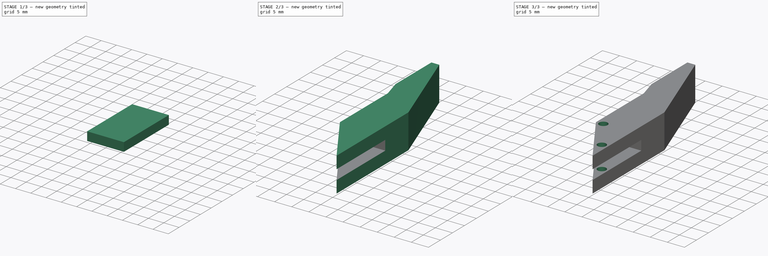
[diagram: build sequence overview — one tinted view per stage of 3, left to right]
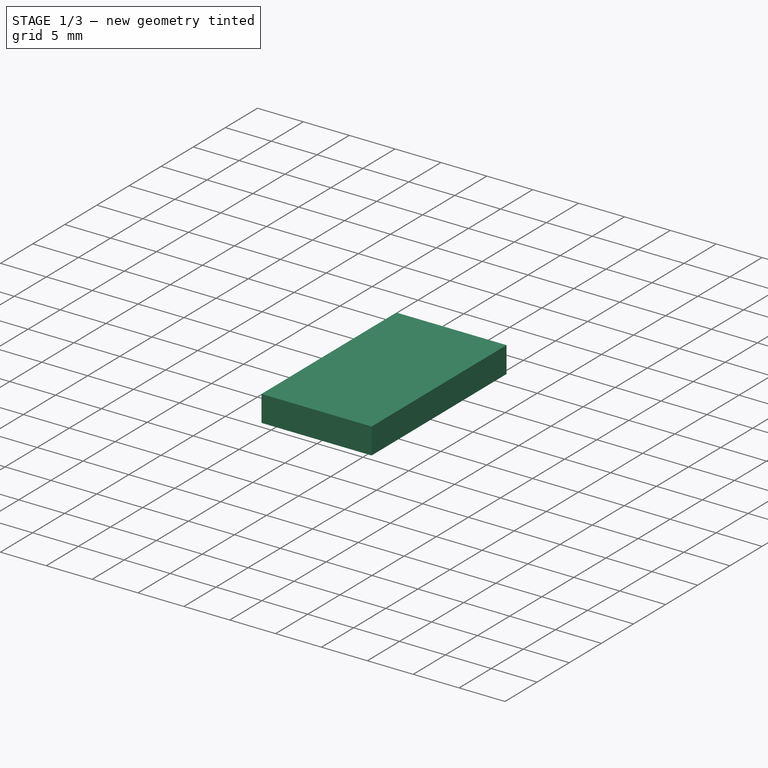
[diagram: stage 1 of 3 — iso view after this stage's code; geometry added in this stage tinted green]
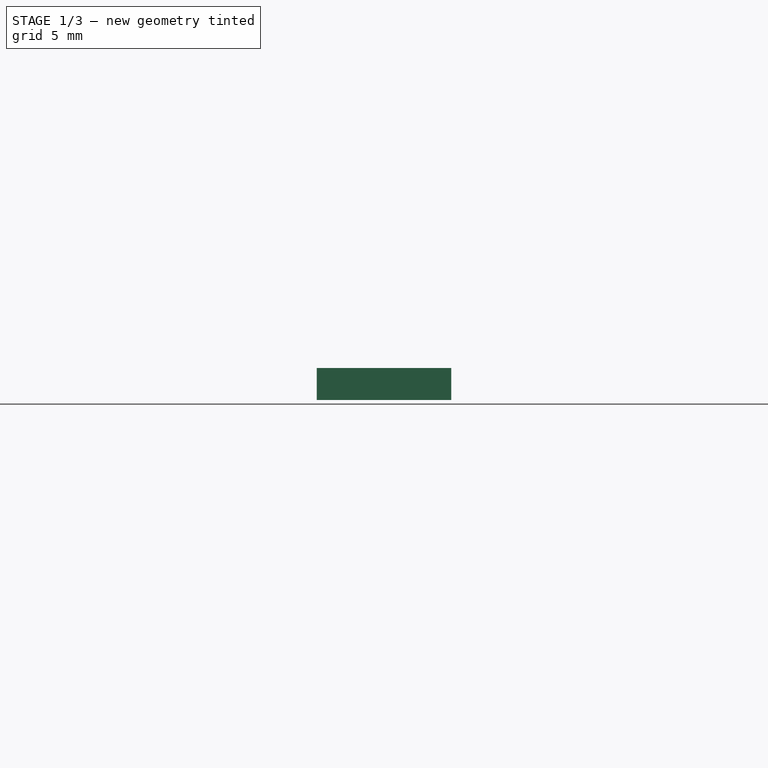
[diagram: stage 1 of 3 — front view after this stage's code; geometry added in this stage tinted green]
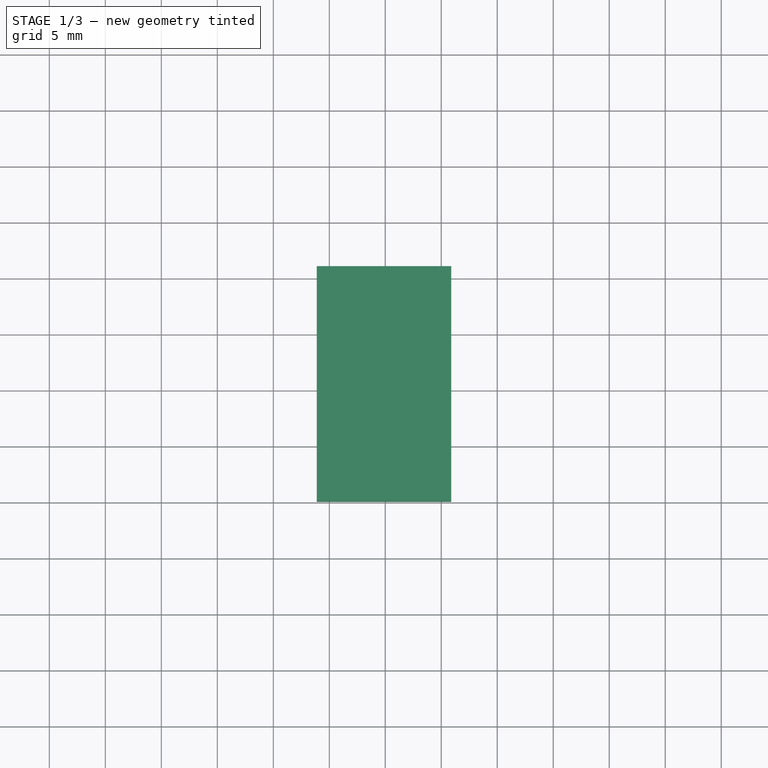
[diagram: stage 1 of 3 — top view after this stage's code; geometry added in this stage tinted green]
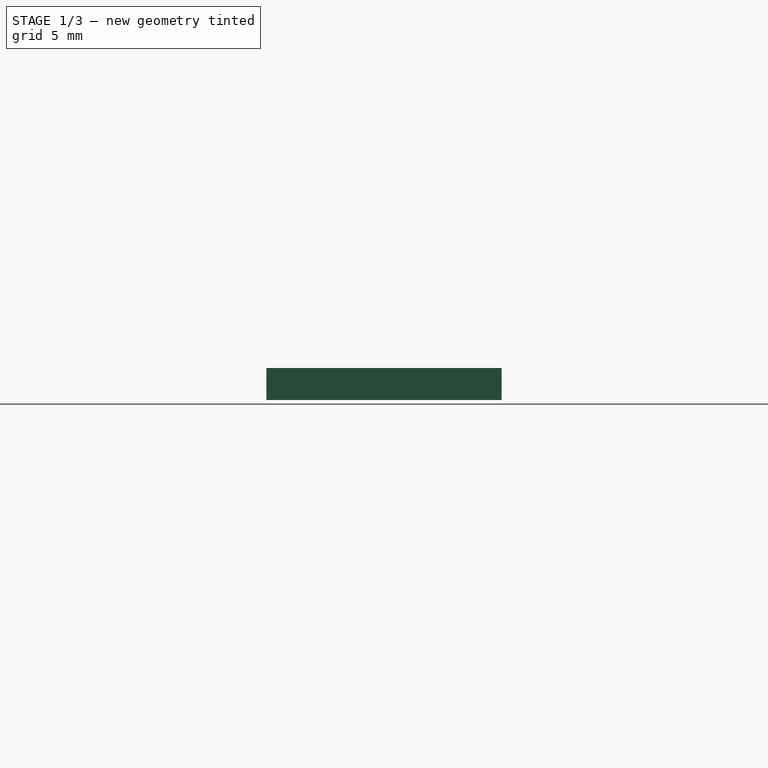
[diagram: stage 1 of 3 — right view after this stage's code; geometry added in this stage tinted green]
FCSTD DOCUMENT  (FreeCAD 0.20R29410 (Git))
Label: Eslabon3
License: All rights reserved
LicenseURL: http://en.wikipedia.org/wiki/All_rights_reserved
objects: Sketcher::SketchObject×3, Part::Extrusion×3, Part::Cut×2
note: 8 computed .brp shape members not serialized (recipe doc carries the construction recipe); baked Part::Feature solids carry a one-line shape summary decoded from their .brp

FEATURE [Sketcher::SketchObject] Sketch  label="Grip1"
  FullyConstrained = false
  sketch-geometry (7):
    g0: LineSegment StartX=30.3549 StartY=31.7763 StartZ=0 EndX=40.5922 EndY=15.7701 EndZ=0
    g1: LineSegment StartX=40.5922 StartY=15.7701 StartZ=0 EndX=40.5922 EndY=45.7701 EndZ=0
    g2: LineSegment StartX=28.8852 StartY=72.0866 StartZ=0 EndX=28.8852 EndY=57.0866 EndZ=0
    g3: LineSegment StartX=28.8852 StartY=57.0866 StartZ=0 EndX=30.3549 EndY=51.7763 EndZ=0
    g4: LineSegment StartX=30.3549 StartY=51.7763 StartZ=0 EndX=30.3549 EndY=31.7763 EndZ=0
    g5: LineSegment StartX=28.8852 StartY=72.0866 StartZ=0 EndX=31.1751 EndY=72.0866 EndZ=0
    g6: LineSegment StartX=31.1751 StartY=72.0866 StartZ=0 EndX=40.5922 EndY=45.7701 EndZ=0
  constraints (16):
    c: Vertical(g1)
    c: Vertical(g2)
    c: Vertical(g4)
    c: Coincident(g4,g3)
    c: Coincident(g3,g2)
    c: Coincident(g1,g0)
    c: Distance(g1) = 30
    c: Distance(g4) = 20
    c: Distance(g2) = 15
    c: Distance(g3) = 5.51
    c: Coincident(g4,g0)
    c: Coincident(g5,g2)
    c: Horizontal(g5)
    c: Coincident(g6,g1)
    c: Coincident(g5,g6)
    c: Distance(g0) = 19
FEATURE [Part::Extrusion] Extrude
  Base = -> Sketch
  Dir = (0,0,1)
  DirMode = 2
  FaceMakerClass = Part::FaceMakerBullseye
  LengthFwd = 10
  LengthRev = 0
  Solid = true
  Symmetric = false
FEATURE [Sketcher::SketchObject] Sketch001  label="Agujero 12x21"
  FullyConstrained = false
  MapMode = 5
  Placement = pos=(28.8852,0,0) rot=(0.57735,-0.57735,-0.57735;2.0944rad)
  Support = -> [Extrude]
  sketch-geometry (4):
    g0: LineSegment StartX=-15.0986 StartY=6.425 StartZ=0 EndX=-36.0986 EndY=6.425 EndZ=0
    g1: LineSegment StartX=-36.0986 StartY=6.425 StartZ=0 EndX=-36.0986 EndY=3.575 EndZ=0
    g2: LineSegment StartX=-36.0986 StartY=3.575 StartZ=0 EndX=-15.0986 EndY=3.575 EndZ=0
    g3: LineSegment StartX=-15.0986 StartY=3.575 StartZ=0 EndX=-15.0986 EndY=6.425 EndZ=0
  constraints (12):
    c: Horizontal(g0)
    c: Coincident(g1,g0)
    c: Vertical(g1)
    c: Horizontal(g2)
    c: Coincident(g3,g2)
    c: Coincident(g3,g0)
    c: Equal(g0,g2)
    c: Equal(g1,g3)
    c: Vertical(g3)
    c: DistanceX(g0,g0) = 21
    c: DistanceY(g3,g3) = 2.85
    c: DistanceY(g-1,g2) = 3.575
FEATURE [Part::Extrusion] Extrude001
  Base = -> Sketch001
  Dir = (-1,0,0)
  DirMode = 2
  FaceMakerClass = Part::FaceMakerBullseye
  LengthFwd = 12
  LengthRev = 0
  Reversed = true
  Solid = true
  Symmetric = false
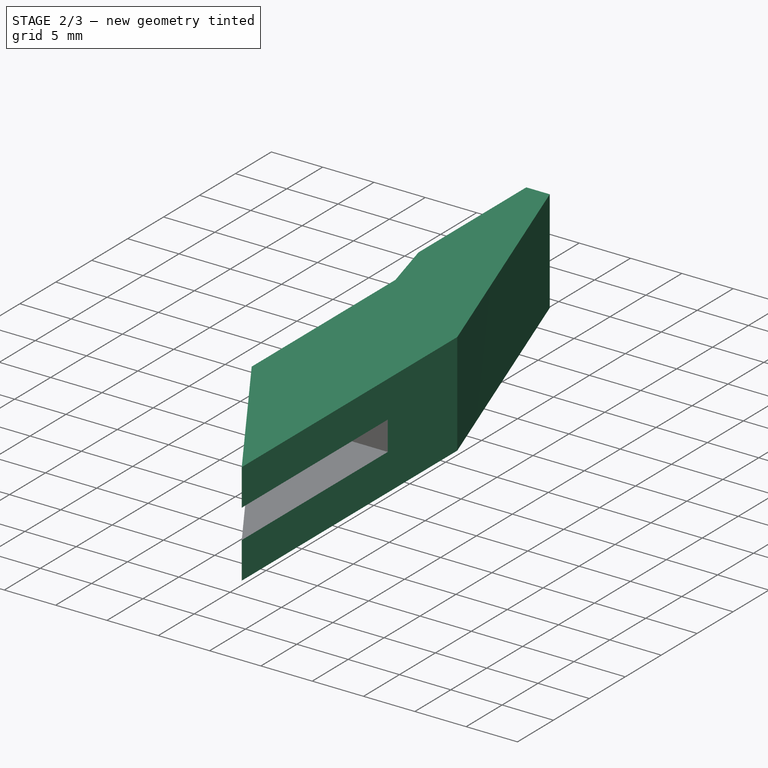
[diagram: stage 2 of 3 — iso view after this stage's code; geometry added in this stage tinted green]
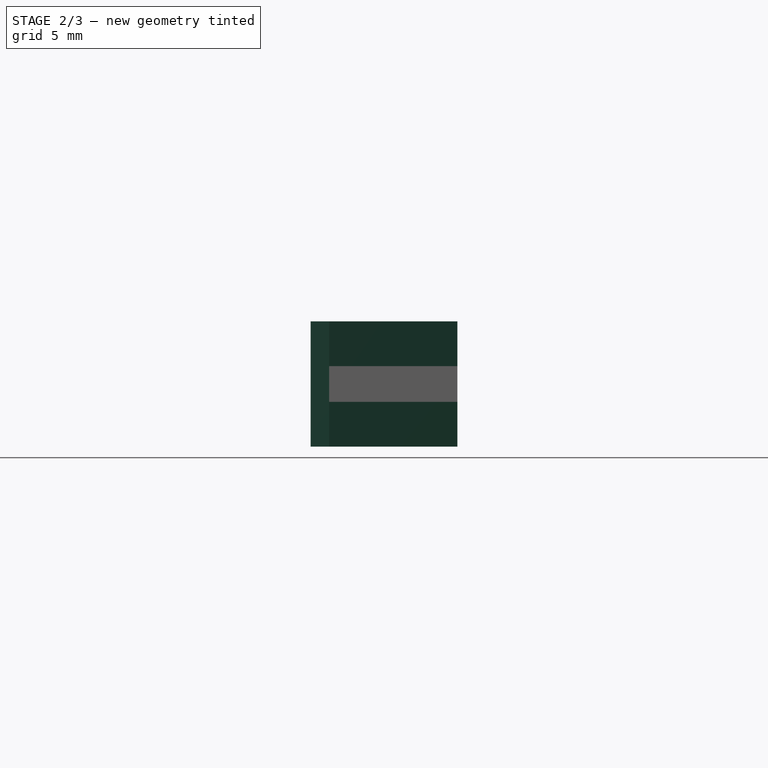
[diagram: stage 2 of 3 — front view after this stage's code; geometry added in this stage tinted green]
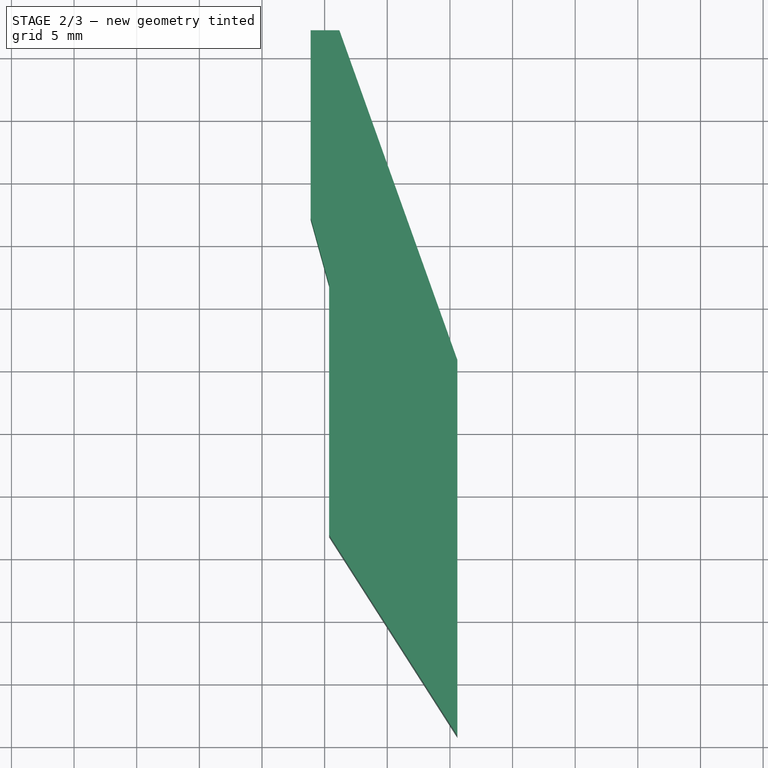
[diagram: stage 2 of 3 — top view after this stage's code; geometry added in this stage tinted green]
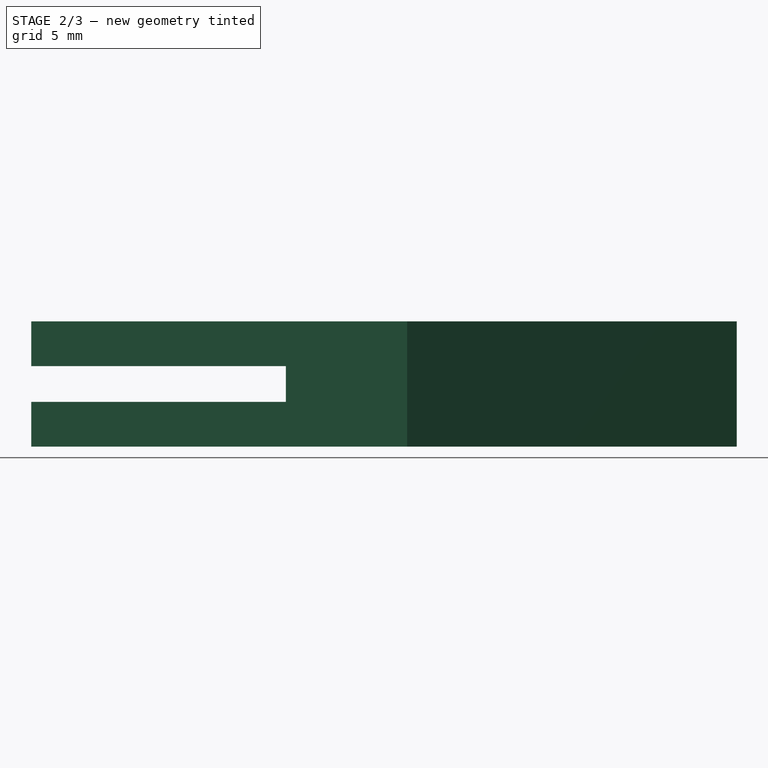
[diagram: stage 2 of 3 — right view after this stage's code; geometry added in this stage tinted green]
FEATURE [Part::Cut] Cut  label="Grip"
  Base = -> Extrude
  Refine = true
  Tool = -> Extrude001
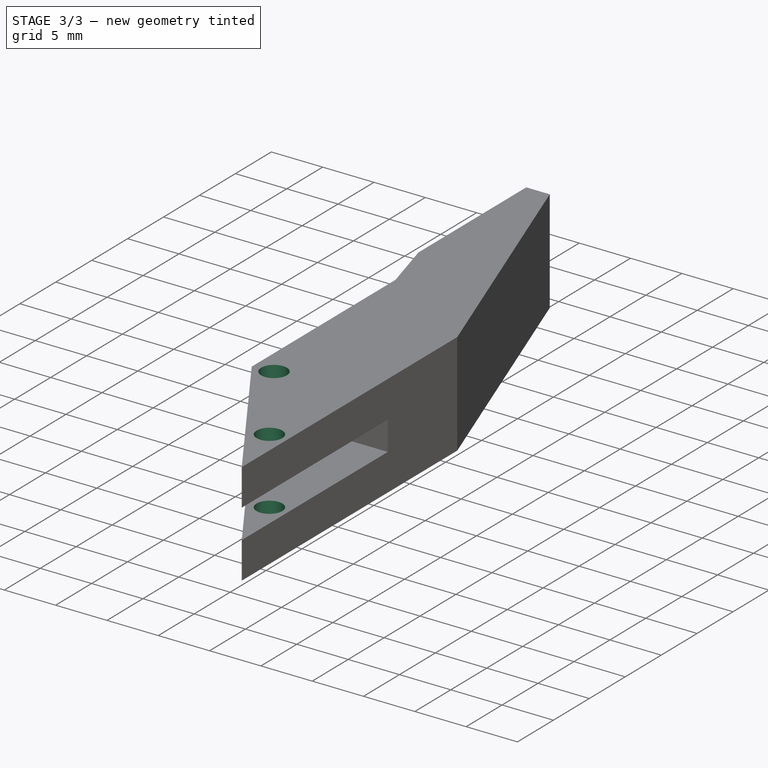
[diagram: stage 3 of 3 — iso view after this stage's code; geometry added in this stage tinted green]
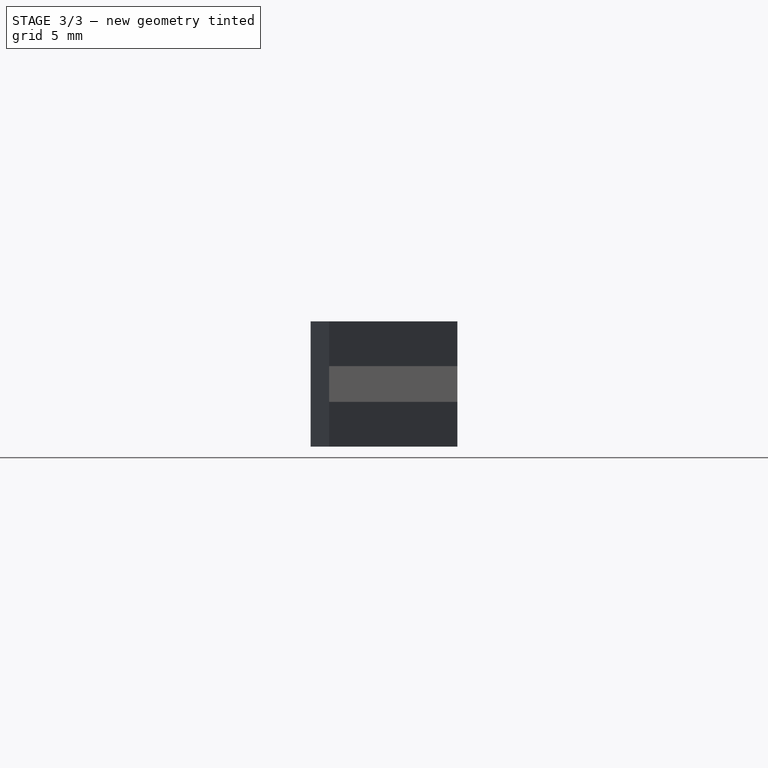
[diagram: stage 3 of 3 — front view after this stage's code; geometry added in this stage tinted green]
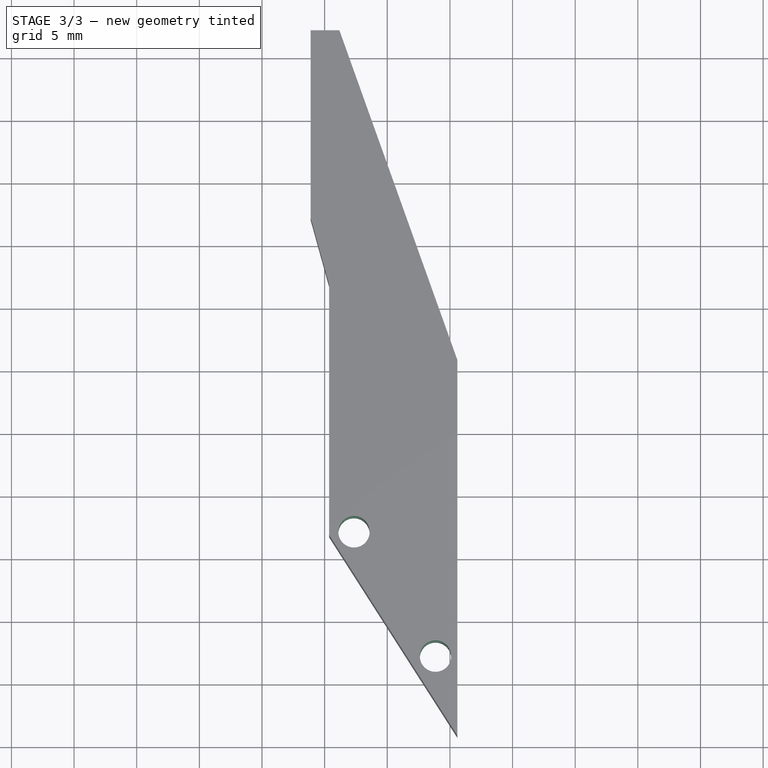
[diagram: stage 3 of 3 — top view after this stage's code; geometry added in this stage tinted green]
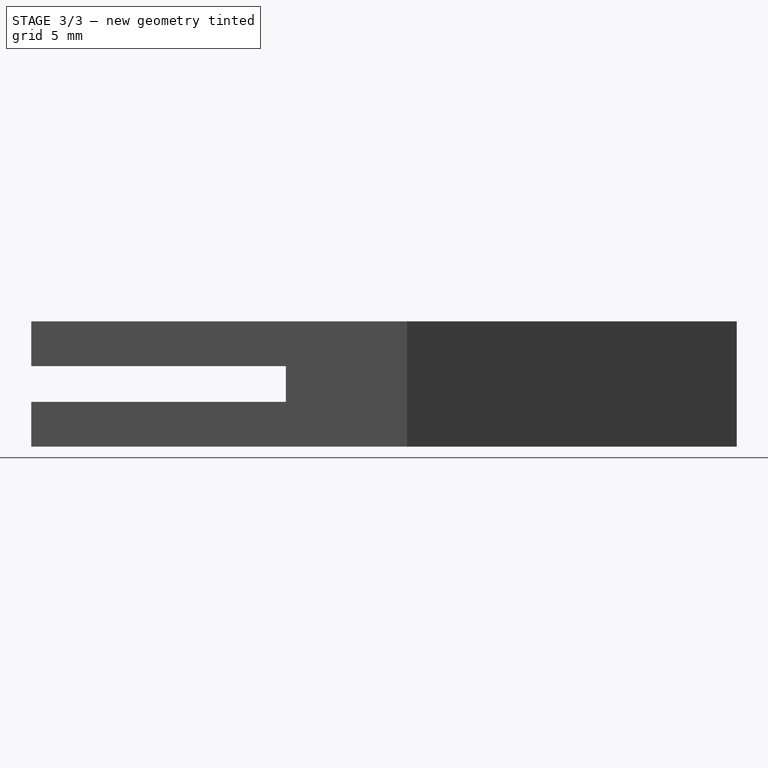
[diagram: stage 3 of 3 — right view after this stage's code; geometry added in this stage tinted green]
FEATURE [Sketcher::SketchObject] Sketch002  label="Holes r1mm"
  FullyConstrained = false
  MapMode = 5
  Placement = pos=(0,0,10) rot=(0,0,1;0rad)
  Support = -> [Cut]
  sketch-geometry (2):
    g0: Circle CenterX=32.3417 CenterY=32.0412 CenterZ=0 NormalX=0 NormalY=0 NormalZ=1 AngleXU=0 Radius=1.25
    g1: Circle CenterX=38.8501 CenterY=22.1145 CenterZ=0 NormalX=0 NormalY=0 NormalZ=1 AngleXU=0 Radius=1.25
  constraints (3):
    c: Radius(g0) = 1.25
    c: Equal(g0,g1)
    c: Distance(g0,g1) = 11.87
FEATURE [Part::Extrusion] Extrude002
  Base = -> Sketch002
  Dir = (0,0,1)
  DirMode = 2
  FaceMakerClass = Part::FaceMakerBullseye
  LengthFwd = 10
  LengthRev = 0
  Reversed = true
  Solid = true
  Symmetric = false
FEATURE [Part::Cut] Cut001
  Base = -> Cut
  Refine = true
  Tool = -> Extrude002
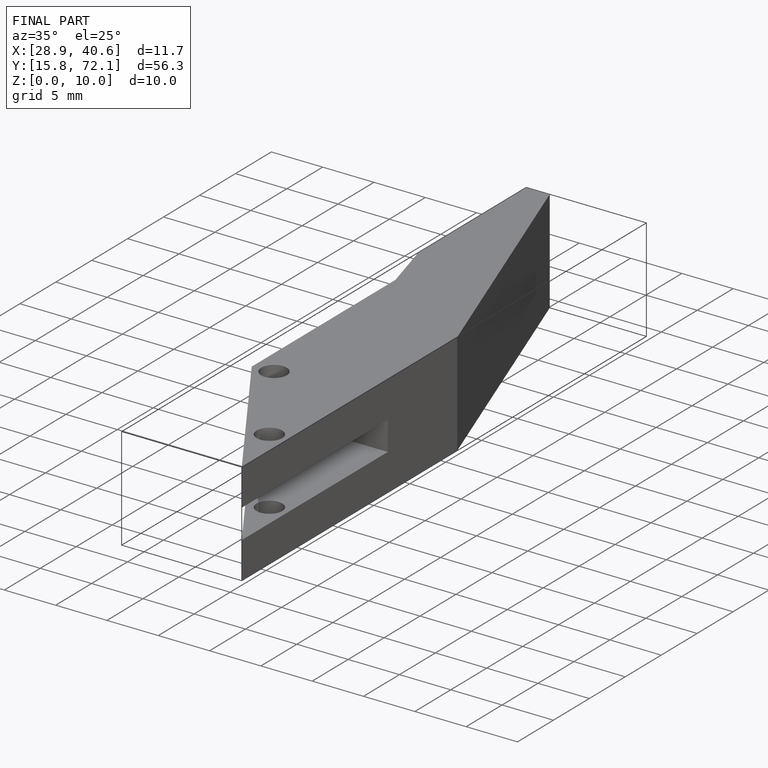
[diagram: finished part — iso view with bounding-box wireframe]
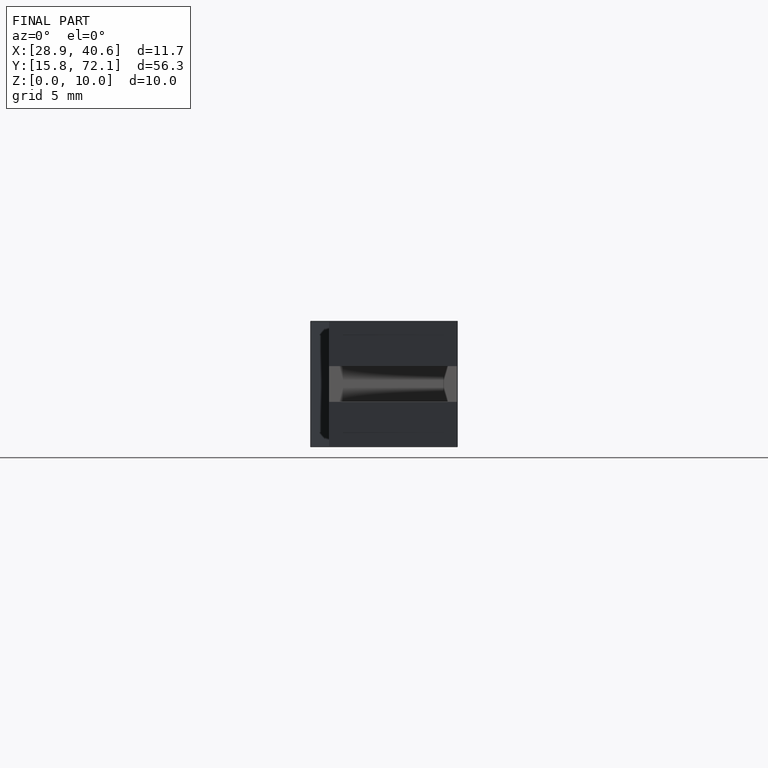
[diagram: finished part — front view with bounding-box wireframe]
